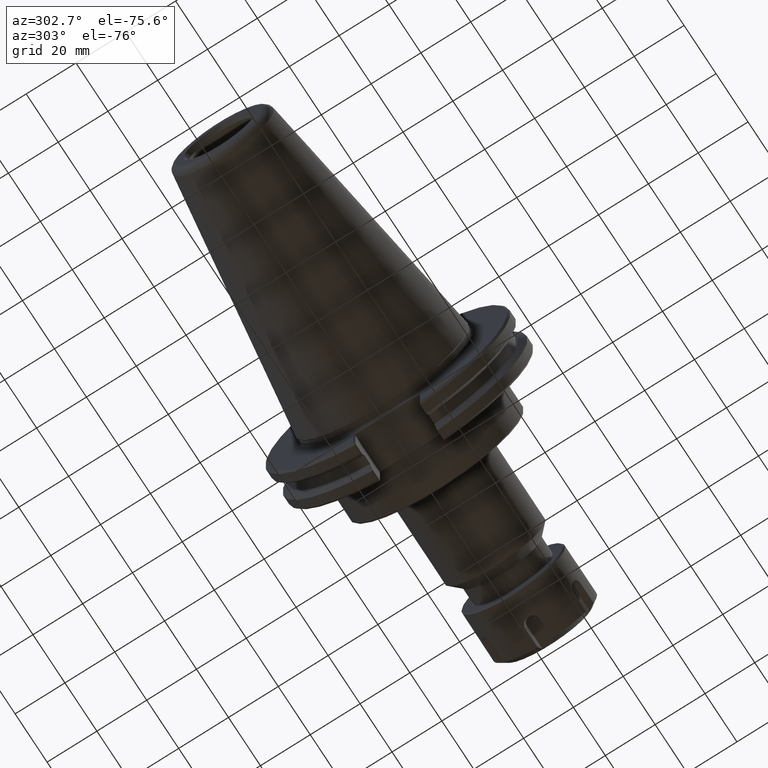
[diagram: clean part render]
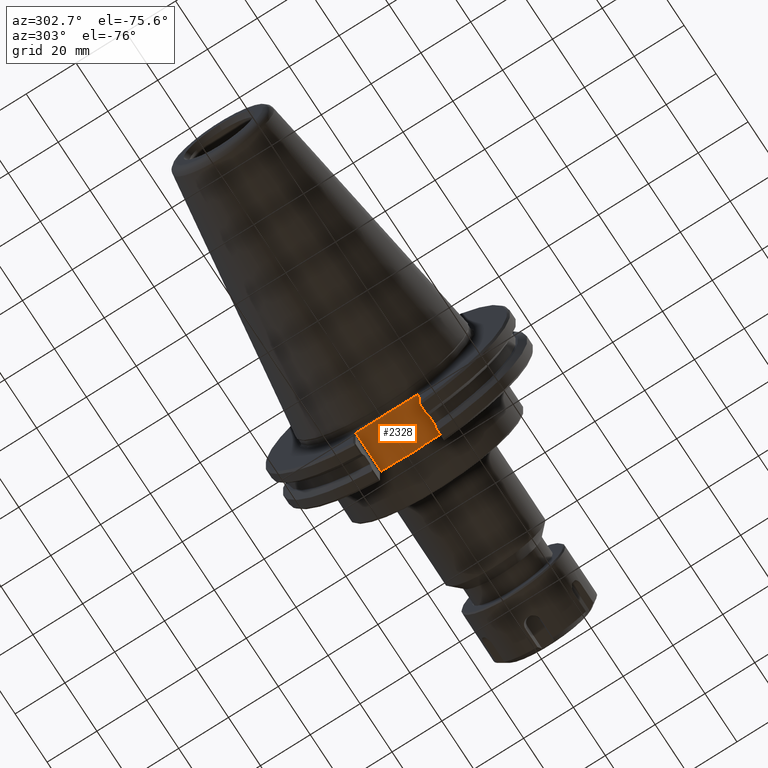
[diagram: same view with one face highlighted and labeled with its STEP entity id]
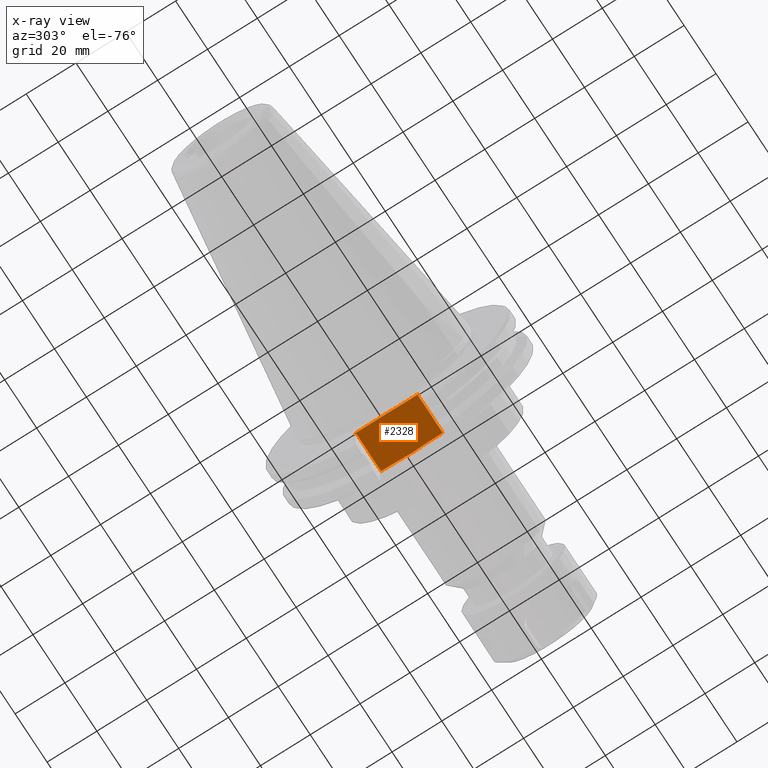
[diagram: x-ray of the same camera — body ghosted, the highlighted face saturated]
A machine part, auxiliary view. The second image highlights one B-rep face of the part: STEP entity #2328.
The next image is the same camera in x-ray: the body ghosted, the highlighted face saturated — about 0% of this face is hidden behind the body in this view.
In plain terms, the highlighted planar face has unit normal (0, 0, 1).
Its self-contained STEP definition (entity closure, byte-faithful):
#124=CARTESIAN_POINT('',(0.75,0.247661058707258,-1.383));
#125=VERTEX_POINT('',#124);
#126=CARTESIAN_POINT('',(0.75,-0.247661058707258,-1.383));
#127=VERTEX_POINT('',#126);
#128=CARTESIAN_POINT('',(0.75,-0.247661058707258,-1.383));
#129=CARTESIAN_POINT('',(0.75,-0.222309261990206,-1.383));
#130=CARTESIAN_POINT('',(0.751183864826854,-0.191910149446599,-1.383));
#131=CARTESIAN_POINT('',(0.755223505896305,-0.114533329032898,-1.383));
#132=CARTESIAN_POINT('',(0.759603921945629,-0.052130401479077,-1.383));
#133=CARTESIAN_POINT('',(0.759603921945629,-3.005440E-031,-1.383));
#134=CARTESIAN_POINT('',(0.759603921945629,0.052130401479077,-1.383));
#135=CARTESIAN_POINT('',(0.755223505896305,0.114533329032898,-1.383));
#136=CARTESIAN_POINT('',(0.751183864826854,0.191910149446599,-1.383));
#137=CARTESIAN_POINT('',(0.75,0.222309261990206,-1.383));
#138=CARTESIAN_POINT('',(0.75,0.247661058707258,-1.383000000000001));
#139=B_SPLINE_CURVE_WITH_KNOTS('',3,(#128,#129,#130,#131,#132,#133,#134,#135,#136,#137,#138),.UNSPECIFIED.,.F.,.U.,(4,2,3,2,4),(3.159605921715087,3.352786612699022,3.750020271969591,4.147253931240162,4.340434622224096),.UNSPECIFIED.);
#140=EDGE_CURVE('',#125,#127,#139,.F.);
#775=CARTESIAN_POINT('',(0.125,-0.504215728752318,-1.383));
#776=VERTEX_POINT('',#775);
#784=CARTESIAN_POINT('',(0.141715728752536,-0.487499999999779,-1.383));
#785=VERTEX_POINT('',#784);
#786=CARTESIAN_POINT('',(0.125,-0.504215728752318,-1.383));
#787=DIRECTION('',(0.707106781186475,0.70710678118662,0.0));
#788=VECTOR('',#787,0.023639610306789);
#789=LINE('',#786,#788);
#790=EDGE_CURVE('',#776,#785,#789,.T.);
#815=CARTESIAN_POINT('',(0.75,-0.487499999999716,-1.383));
#816=VERTEX_POINT('',#815);
#833=CARTESIAN_POINT('',(0.141715728752536,-0.487499999999779,-1.383));
#834=DIRECTION('',(1.0,1.033960E-013,0.0));
#835=VECTOR('',#834,0.608284271247464);
#836=LINE('',#833,#835);
#837=EDGE_CURVE('',#785,#816,#836,.T.);
#997=CARTESIAN_POINT('',(0.75,0.487500000000284,-1.383));
#998=VERTEX_POINT('',#997);
#1006=CARTESIAN_POINT('',(0.14171572875254,0.487500000000221,-1.383));
#1007=VERTEX_POINT('',#1006);
#1008=CARTESIAN_POINT('',(0.75,0.487500000000284,-1.383));
#1009=DIRECTION('',(-1.0,-1.033960E-013,0.0));
#1010=VECTOR('',#1009,0.60828427124746);
#1011=LINE('',#1008,#1010);
#1012=EDGE_CURVE('',#998,#1007,#1011,.T.);
#1029=CARTESIAN_POINT('',(0.125,0.504215728752758,-1.383));
#1030=VERTEX_POINT('',#1029);
#1031=CARTESIAN_POINT('',(0.14171572875254,0.487500000000221,-1.383));
#1032=DIRECTION('',(-0.70710678118662,0.707106781186475,0.0));
#1033=VECTOR('',#1032,0.02363961030679);
#1034=LINE('',#1031,#1033);
#1035=EDGE_CURVE('',#1007,#1030,#1034,.T.);
#1595=CARTESIAN_POINT('',(0.125,0.182581488656435,-1.383));
#1596=VERTEX_POINT('',#1595);
#1597=CARTESIAN_POINT('',(0.125,0.504215728752758,-1.383));
#1598=DIRECTION('',(0.0,-1.0,0.0));
#1599=VECTOR('',#1598,0.321634240096323);
#1600=LINE('',#1597,#1599);
#1601=EDGE_CURVE('',#1030,#1596,#1600,.T.);
#1603=CARTESIAN_POINT('',(0.125,-0.182581488656435,-1.383));
#1604=VERTEX_POINT('',#1603);
#1612=CARTESIAN_POINT('',(0.125,-0.182581488656435,-1.383));
#1613=DIRECTION('',(0.0,-1.0,0.0));
#1614=VECTOR('',#1613,0.321634240095883);
#1615=LINE('',#1612,#1614);
#1616=EDGE_CURVE('',#1604,#776,#1615,.T.);
#2011=CARTESIAN_POINT('',(0.125,0.182581488656435,-1.383000000000001));
#2012=CARTESIAN_POINT('',(0.125,0.165387179151472,-1.383000000000001));
#2013=CARTESIAN_POINT('',(0.124696740437306,0.14475623647051,-1.383));
#2014=CARTESIAN_POINT('',(0.123603022203855,0.087702024610562,-1.383));
#2015=CARTESIAN_POINT('',(0.122495454169735,0.039870384575825,-1.383));
#2016=CARTESIAN_POINT('',(0.122495454169735,-3.005440E-031,-1.383));
#2017=CARTESIAN_POINT('',(0.122495454169735,-0.039870384575825,-1.383));
#2018=CARTESIAN_POINT('',(0.123603022203855,-0.087702024610562,-1.383));
#2019=CARTESIAN_POINT('',(0.124696740437306,-0.14475623647051,-1.383));
#2020=CARTESIAN_POINT('',(0.125,-0.165387179151472,-1.383));
#2021=CARTESIAN_POINT('',(0.125,-0.182581488656435,-1.383));
#2022=B_SPLINE_CURVE_WITH_KNOTS('',3,(#2011,#2012,#2013,#2014,#2015,#2016,#2017,#2018,#2019,#2020,#2021),.UNSPECIFIED.,.F.,.U.,(4,2,3,2,4),(2.935950518841143,3.066971157268958,3.370783487736747,3.674595818204536,3.805616456632352),.UNSPECIFIED.);
#2023=EDGE_CURVE('',#1604,#1596,#2022,.F.);
#2086=CARTESIAN_POINT('',(0.75,0.247661058707258,-1.383));
#2087=DIRECTION('',(0.0,1.0,0.0));
#2088=VECTOR('',#2087,0.239838941293026);
#2089=LINE('',#2086,#2088);
#2090=EDGE_CURVE('',#125,#998,#2089,.T.);
#2103=CARTESIAN_POINT('',(0.75,-0.487499999999716,-1.383));
#2104=DIRECTION('',(0.0,1.0,0.0));
#2105=VECTOR('',#2104,0.239838941292458);
#2106=LINE('',#2103,#2105);
#2107=EDGE_CURVE('',#816,#127,#2106,.T.);
#2311=CARTESIAN_POINT('',(0.60841273155094,2.696695E-013,-1.383));
#2312=DIRECTION('',(0.0,0.0,1.0));
#2313=DIRECTION('',(1.0,0.0,0.0));
#2314=AXIS2_PLACEMENT_3D('',#2311,#2312,#2313);
#2315=PLANE('',#2314);
#2316=ORIENTED_EDGE('',*,*,#790,.F.);
#2317=ORIENTED_EDGE('',*,*,#1616,.F.);
#2318=ORIENTED_EDGE('',*,*,#2023,.T.);
#2319=ORIENTED_EDGE('',*,*,#1601,.F.);
#2320=ORIENTED_EDGE('',*,*,#1035,.F.);
#2321=ORIENTED_EDGE('',*,*,#1012,.F.);
#2322=ORIENTED_EDGE('',*,*,#2090,.F.);
#2323=ORIENTED_EDGE('',*,*,#140,.T.);
#2324=ORIENTED_EDGE('',*,*,#2107,.F.);
#2325=ORIENTED_EDGE('',*,*,#837,.F.);
#2326=EDGE_LOOP('',(#2316,#2317,#2318,#2319,#2320,#2321,#2322,#2323,#2324,#2325));
#2327=FACE_OUTER_BOUND('',#2326,.T.);
#2328=ADVANCED_FACE('',(#2327),#2315,.F.);